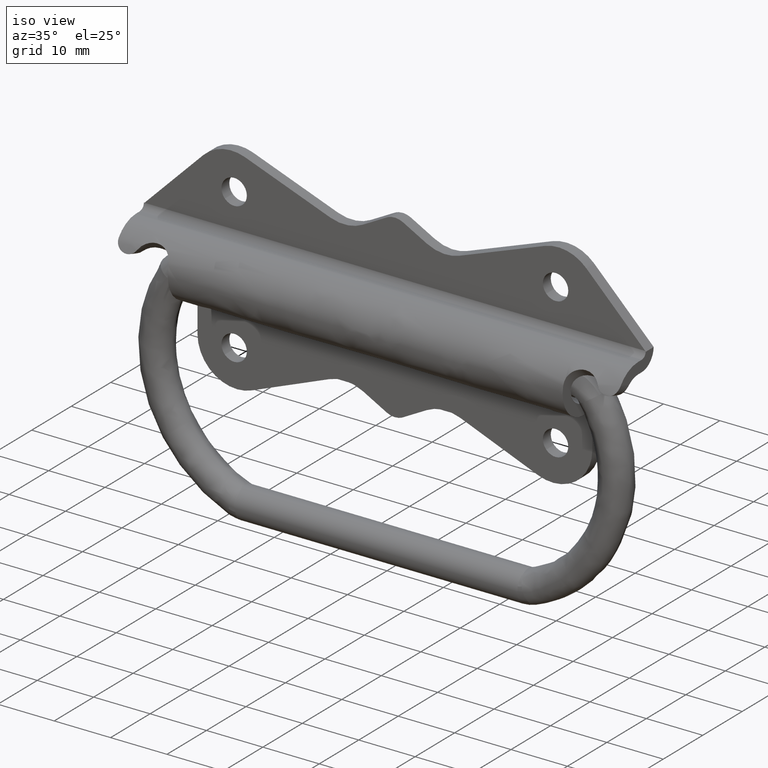
[diagram: clean part render]
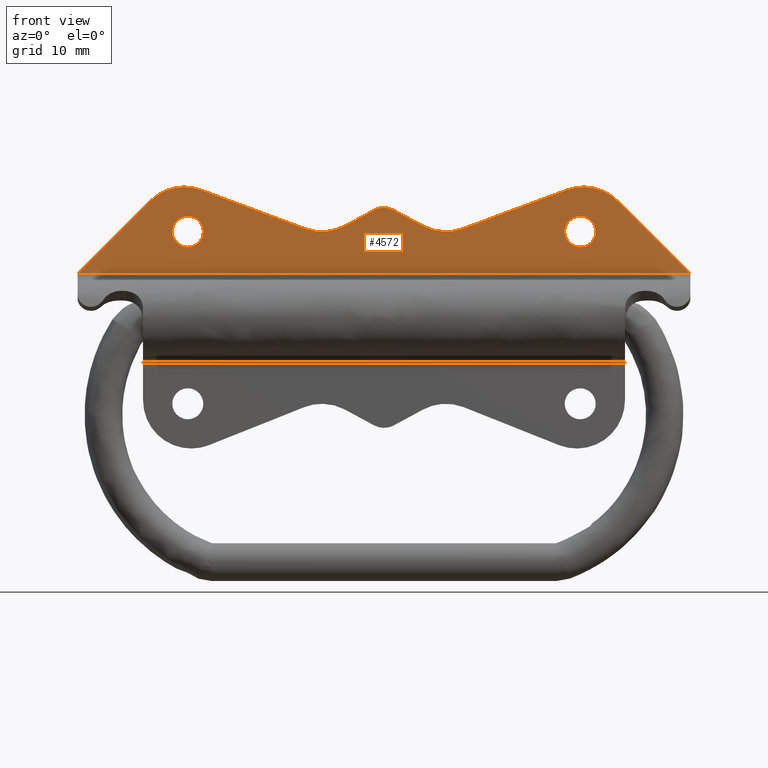
[diagram: tour spotlight — one face highlighted and labeled with its STEP entity id]
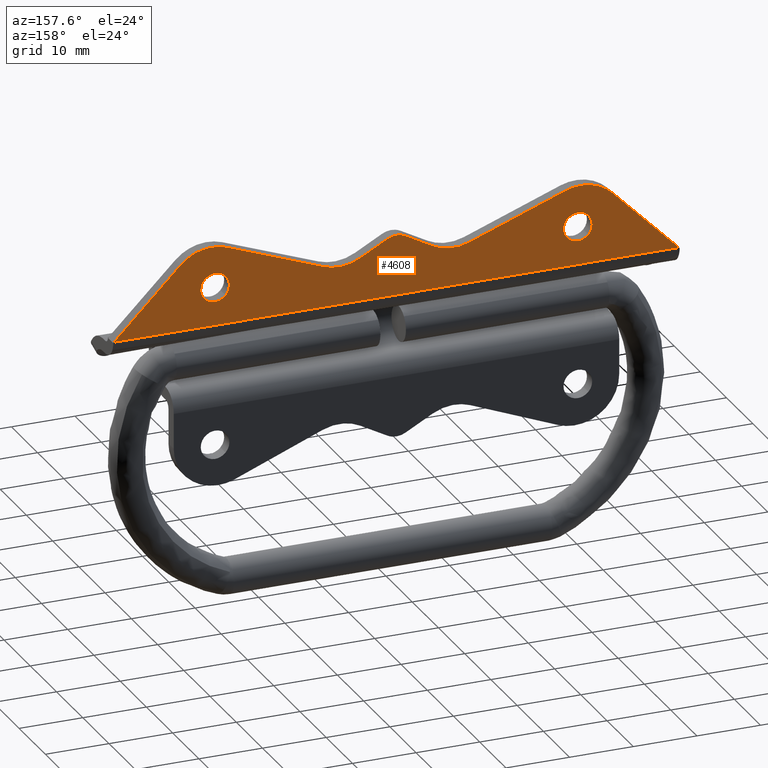
[diagram: tour spotlight — one face highlighted and labeled with its STEP entity id]
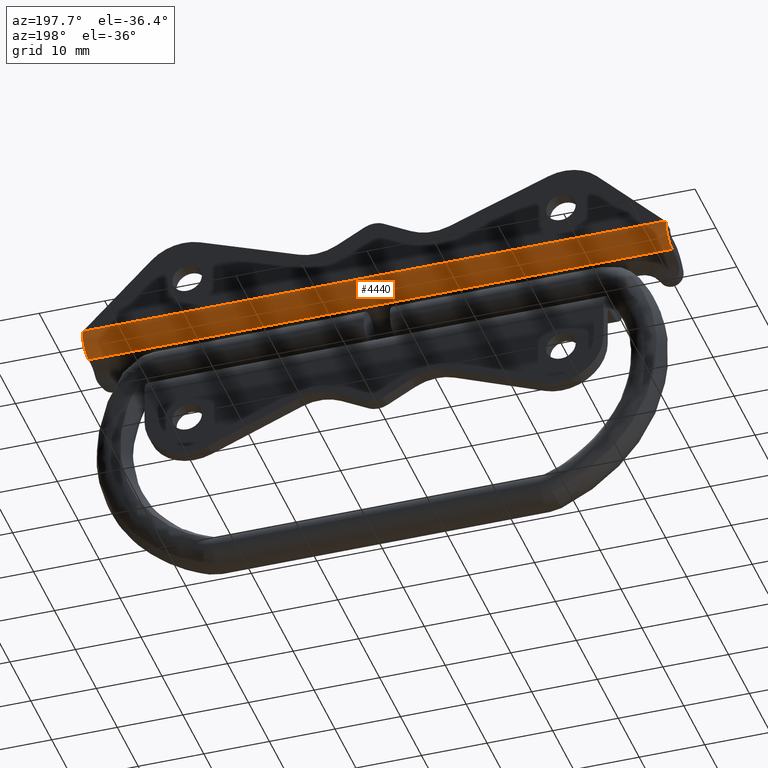
[diagram: tour spotlight — one face highlighted and labeled with its STEP entity id]
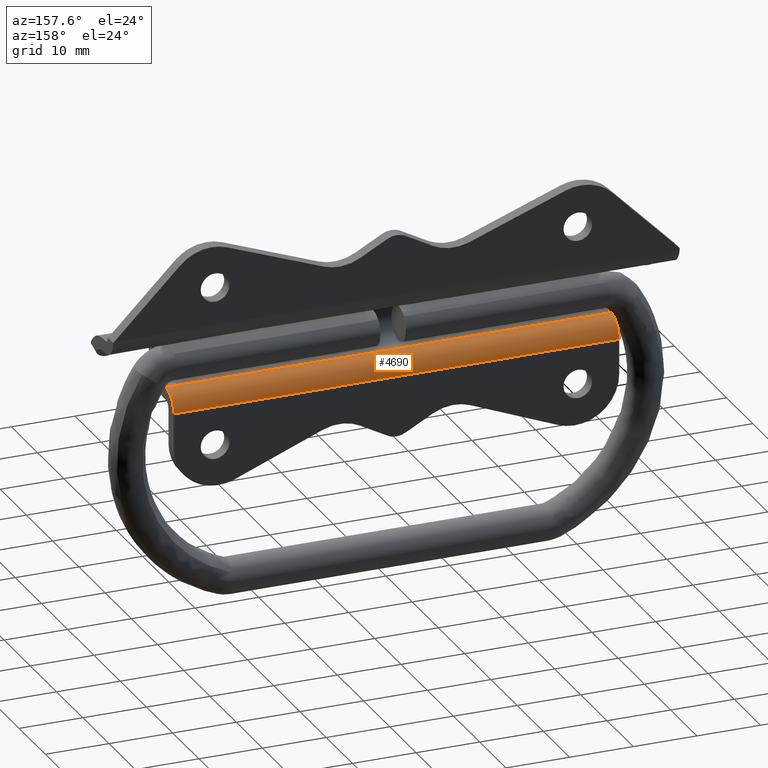
[diagram: tour spotlight — one face highlighted and labeled with its STEP entity id]
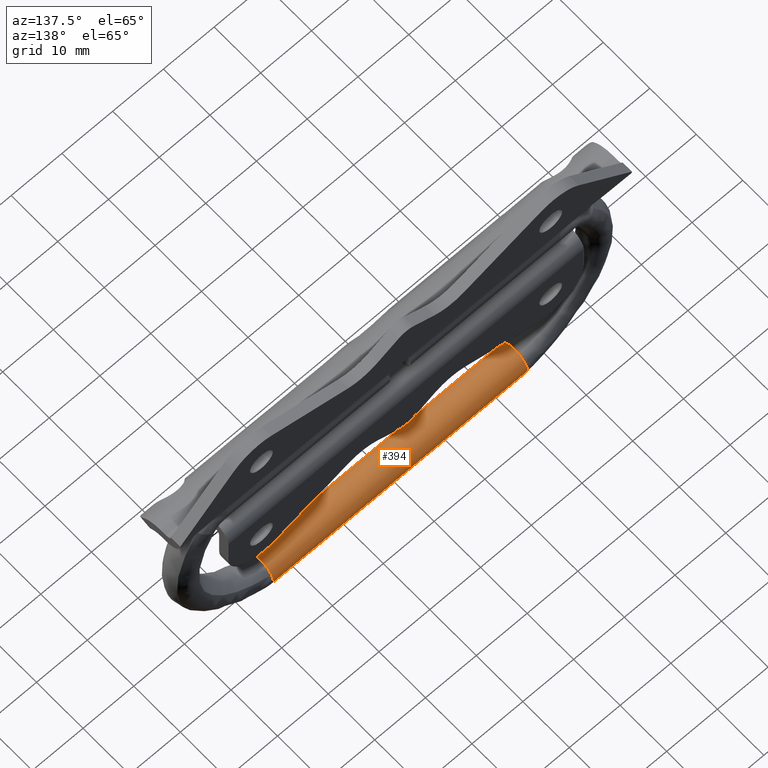
[diagram: tour spotlight — one face highlighted and labeled with its STEP entity id]
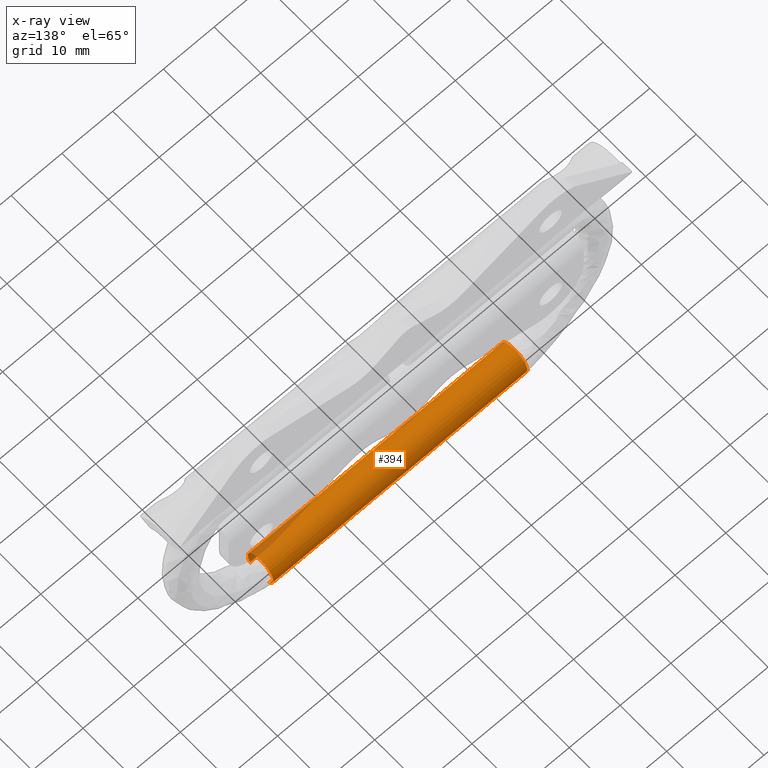
[diagram: x-ray of the same camera — body ghosted, this tour face saturated]
A machine part: a face-by-face anatomy tour. The part has 78 B-rep faces; the first image is the clean iso view, then the 5 largest visible faces are spotlighted one at a time (largest first), each with its STEP entity span.

Face 1 — front view, entity #4572. In plain terms, the highlighted face is a freeform B-spline surface patch.
Definition (entity closure, byte-faithful):
#1646=CARTESIAN_POINT('',(-28.500000000000000,2.0,14.750000000000000));
#1647=VERTEX_POINT('',#1646);
#1648=CARTESIAN_POINT('',(-30.112464303199339,2.0,14.069221608867430));
#1649=VERTEX_POINT('',#1648);
#1650=CARTESIAN_POINT('',(-28.500000000000000,2.0,14.750000000000000));
#1651=CARTESIAN_POINT('',(-28.780936459540200,2.000000000000001,14.750261986376071));
#1652=CARTESIAN_POINT('',(-29.379942735998949,2.000000000000001,14.636219321550950));
#1653=CARTESIAN_POINT('',(-29.890713231224950,1.999999999999998,14.297735731709571));
#1654=CARTESIAN_POINT('',(-30.112464303199339,2.0,14.069221608867430));
#1655=B_SPLINE_CURVE_WITH_KNOTS('',3,(#1650,#1651,#1652,#1653,#1654),.UNSPECIFIED.,.F.,.U.,(4,1,4),(0.000000042792487,0.842713720006371,1.797770490313606),.UNSPECIFIED.);
#1656=EDGE_CURVE('',#1647,#1649,#1655,.T.);
#1714=CARTESIAN_POINT('',(-30.158874300800900,1.999999999987740,10.979921561557321));
#1715=VERTEX_POINT('',#1714);
#1721=CARTESIAN_POINT('',(-28.500000000000000,2.0,10.250000000000000));
#1722=VERTEX_POINT('',#1721);
#1723=CARTESIAN_POINT('',(-30.158874300800900,1.999999999987740,10.979921561557321));
#1724=CARTESIAN_POINT('',(-29.962162818931489,1.999999999989194,10.764796020854270));
#1725=CARTESIAN_POINT('',(-29.451640087844019,1.999999999992967,10.389638264923811));
#1726=CARTESIAN_POINT('',(-28.830415494494609,1.999999999997559,10.249455333816259));
#1727=CARTESIAN_POINT('',(-28.500000000000000,2.0,10.250000000000000));
#1728=B_SPLINE_CURVE_WITH_KNOTS('',3,(#1723,#1724,#1725,#1726,#1727),.UNSPECIFIED.,.F.,.U.,(4,1,4),(0.000000051364732,0.874403335719442,1.865372861857639),.UNSPECIFIED.);
#1729=EDGE_CURVE('',#1715,#1722,#1728,.T.);
#1731=CARTESIAN_POINT('',(-26.250000000001030,2.0,12.500002145833530));
#1732=VERTEX_POINT('',#1731);
#1733=CARTESIAN_POINT('',(-28.500000000000000,2.0,10.250000000000000));
#1734=CARTESIAN_POINT('',(-28.260685985326521,1.999999999999998,10.249872316617211));
#1735=CARTESIAN_POINT('',(-27.855797017828511,2.000000000000004,10.315241041811561));
#1736=CARTESIAN_POINT('',(-27.333832799183540,1.999999999999997,10.554370751765340));
#1737=CARTESIAN_POINT('',(-26.862056656355549,2.000000000000003,10.913121552234211));
#1738=CARTESIAN_POINT('',(-26.472544256283701,1.999999999999999,11.438259299999450));
#1739=CARTESIAN_POINT('',(-26.280066152111100,2.000000000000001,12.021390413593011));
#1740=CARTESIAN_POINT('',(-26.250001080899249,2.0,12.371152328705261));
#1741=CARTESIAN_POINT('',(-26.250000000001030,2.0,12.500002145833530));
#1742=B_SPLINE_CURVE_WITH_KNOTS('',3,(#1733,#1734,#1735,#1736,#1737,#1738,#1739,#1740,#1741),.UNSPECIFIED.,.F.,.U.,(4,1,1,1,1,1,4),(0.000000155767153,0.717913608047622,1.214959039227705,1.711982876236105,2.485112030031873,3.147811830068163,3.534381634218058),.UNSPECIFIED.);
#1743=EDGE_CURVE('',#1722,#1732,#1742,.T.);
#1745=CARTESIAN_POINT('',(-26.250000000001030,2.0,12.500002145833530));
#1746=CARTESIAN_POINT('',(-26.249753758114920,2.0,12.776148038658910));
#1747=CARTESIAN_POINT('',(-26.342683398597149,2.000000000000001,13.273003858985710));
#1748=CARTESIAN_POINT('',(-26.663700237006260,2.000000000000001,13.839651483432529));
#1749=CARTESIAN_POINT('',(-27.020893031221810,1.999999999999997,14.214693929461300));
#1750=CARTESIAN_POINT('',(-27.383813113924180,2.000000000000006,14.470304239101999));
#1751=CARTESIAN_POINT('',(-27.874205535245508,1.999999999999992,14.687735501323001));
#1752=CARTESIAN_POINT('',(-28.260681411242700,2.000000000000001,14.750119632575460));
#1753=CARTESIAN_POINT('',(-28.500000000000000,2.0,14.750000000000000));
#1754=B_SPLINE_CURVE_WITH_KNOTS('',3,(#1745,#1746,#1747,#1748,#1749,#1750,#1751,#1752,#1753),.UNSPECIFIED.,.F.,.U.,(4,1,1,1,1,1,4),(0.000000158707681,0.828370173946963,1.491096059119642,1.932827003585100,2.374648093529795,2.816458655757183,3.534379215303186),.UNSPECIFIED.);
#1755=EDGE_CURVE('',#1732,#1647,#1754,.T.);
#1774=CARTESIAN_POINT('',(-30.749999999998980,2.0,12.499997854166480));
#1775=VERTEX_POINT('',#1774);
#1776=CARTESIAN_POINT('',(-30.112464303199339,2.0,14.069221608867430));
#1777=CARTESIAN_POINT('',(-30.301885406774328,2.000000000000004,13.874897249678909));
#1778=CARTESIAN_POINT('',(-30.629331080357471,1.999999999999996,13.386074960205161));
#1779=CARTESIAN_POINT('',(-30.750357243919360,2.000000000000002,12.807567879027250));
#1780=CARTESIAN_POINT('',(-30.749999999998980,2.0,12.499997854166480));
#1781=B_SPLINE_CURVE_WITH_KNOTS('',3,(#1776,#1777,#1778,#1779,#1780),.UNSPECIFIED.,.F.,.U.,(4,1,4),(0.000000051619185,0.814049717150429,1.736611738029661),.UNSPECIFIED.);
#1782=EDGE_CURVE('',#1649,#1775,#1781,.T.);
#1784=CARTESIAN_POINT('',(-30.749999999998980,2.0,12.499997854166480));
#1785=CARTESIAN_POINT('',(-30.750196169746889,1.999999999997894,12.239190594946161));
#1786=CARTESIAN_POINT('',(-30.652116566863540,1.999999999993425,11.683028737538031));
#1787=CARTESIAN_POINT('',(-30.358826594997769,1.999999999989483,11.197630047076350));
#1788=CARTESIAN_POINT('',(-30.158874300800900,1.999999999987740,10.979921561557321));
#1789=B_SPLINE_CURVE_WITH_KNOTS('',3,(#1784,#1785,#1786,#1787,#1788),.UNSPECIFIED.,.F.,.U.,(4,1,4),(0.000000042381679,0.782358396396658,1.669006656559724),.UNSPECIFIED.);
#1790=EDGE_CURVE('',#1775,#1715,#1789,.T.);
#1842=CARTESIAN_POINT('',(28.499500000000001,2.0,14.750000000000000));
#1843=VERTEX_POINT('',#1842);
#1844=CARTESIAN_POINT('',(26.887035696800659,2.0,14.069221608867430));
#1845=VERTEX_POINT('',#1844);
#1846=CARTESIAN_POINT('',(28.499500000000001,2.0,14.750000000000000));
#1847=CARTESIAN_POINT('',(28.218563634179642,2.000000000000002,14.750262106107860));
#1848=CARTESIAN_POINT('',(27.619557053465272,2.0,14.636218924237280));
#1849=CARTESIAN_POINT('',(27.108786547242278,1.999999999999999,14.297735816048480));
#1850=CARTESIAN_POINT('',(26.887035696800659,2.0,14.069221608867430));
#1851=B_SPLINE_CURVE_WITH_KNOTS('',3,(#1846,#1847,#1848,#1849,#1850),.UNSPECIFIED.,.F.,.U.,(4,1,4),(0.000000042793704,0.842713720006855,1.797770490313599),.UNSPECIFIED.);
#1852=EDGE_CURVE('',#1843,#1845,#1851,.T.);
#1909=CARTESIAN_POINT('',(26.840625699199109,1.999999999987740,10.979921561557321));
#1910=VERTEX_POINT('',#1909);
#1916=CARTESIAN_POINT('',(28.499500000000001,2.0,10.250000000000000));
#1917=VERTEX_POINT('',#1916);
#1918=CARTESIAN_POINT('',(26.840625699199109,1.999999999987740,10.979921561557321));
#1919=CARTESIAN_POINT('',(27.037337163861459,1.999999999989194,10.764775642328820));
#1920=CARTESIAN_POINT('',(27.404280969961640,1.999999999991907,10.495218348600741));
#1921=CARTESIAN_POINT('',(27.994333973120082,1.999999999996261,10.288715397777761));
#1922=CARTESIAN_POINT('',(28.324622496186230,1.999999999998711,10.249962834367571));
#1923=CARTESIAN_POINT('',(28.499500000000001,2.0,10.250000000000000));
#1924=B_SPLINE_CURVE_WITH_KNOTS('',3,(#1918,#1919,#1920,#1921,#1922,#1923),.UNSPECIFIED.,.F.,.U.,(4,1,1,4),(0.000000051365111,0.874403335719575,1.340735715909193,1.865372861857638),.UNSPECIFIED.);
#1925=EDGE_CURVE('',#1910,#1917,#1924,.T.);
#1927=CARTESIAN_POINT('',(30.749499999998971,2.0,12.500002145833530));
#1928=VERTEX_POINT('',#1927);
#1929=CARTESIAN_POINT('',(28.499500000000001,2.0,10.250000000000000));
#1930=CARTESIAN_POINT('',(28.812517220889230,1.999999999999998,10.249575659102270));
#1931=CARTESIAN_POINT('',(29.309151147096319,2.000000000000003,10.355463125445111));
#1932=CARTESIAN_POINT('',(29.929591531373799,1.999999999999996,10.727387331661440));
#1933=CARTESIAN_POINT('',(30.314509164673190,2.000000000000012,11.131654690425441));
#1934=CARTESIAN_POINT('',(30.651860642589408,1.999999999999985,11.727178541332320));
#1935=CARTESIAN_POINT('',(30.749919856530749,1.999999999999999,12.186976699120541));
#1936=CARTESIAN_POINT('',(30.749499999998971,2.0,12.500002145833530));
#1937=B_SPLINE_CURVE_WITH_KNOTS('',3,(#1929,#1930,#1931,#1932,#1933,#1934,#1935,#1936),.UNSPECIFIED.,.F.,.U.,(4,1,1,1,1,4),(0.000000155765443,0.938822008034024,1.491097077846581,2.153760779973535,2.595558531605534,3.534381634218060),.UNSPECIFIED.);
#1938=EDGE_CURVE('',#1917,#1928,#1937,.T.);
#1940=CARTESIAN_POINT('',(30.749499999998971,2.0,12.500002145833530));
#1941=CARTESIAN_POINT('',(30.749532155373711,2.0,12.684075369201770));
#1942=CARTESIAN_POINT('',(30.699576347616290,2.000000000000006,13.089057318124070));
#1943=CARTESIAN_POINT('',(30.478864539766331,1.999999999999996,13.621998745908421));
#1944=CARTESIAN_POINT('',(30.153544390042409,2.000000000000001,14.049369447686161));
#1945=CARTESIAN_POINT('',(29.719458012920128,2.000000000000003,14.424089427867070));
#1946=CARTESIAN_POINT('',(29.162195512412211,1.999999999999991,14.687545158747939));
#1947=CARTESIAN_POINT('',(28.701978463231629,2.000000000000007,14.750050716259830));
#1948=CARTESIAN_POINT('',(28.499500000000001,2.0,14.750000000000000));
#1949=B_SPLINE_CURVE_WITH_KNOTS('',3,(#1940,#1941,#1942,#1943,#1944,#1945,#1946,#1947,#1948),.UNSPECIFIED.,.F.,.U.,(4,1,1,1,1,1,4),(0.000000158706988,0.552237305301579,1.214958210623204,1.711981710236493,2.153759310826881,2.926920889924953,3.534379215303185),.UNSPECIFIED.);
#1950=EDGE_CURVE('',#1928,#1843,#1949,.T.);
#1969=CARTESIAN_POINT('',(26.249500000001021,2.0,12.499997854166480));
#1970=VERTEX_POINT('',#1969);
#1971=CARTESIAN_POINT('',(26.887035696800659,2.0,14.069221608867430));
#1972=CARTESIAN_POINT('',(26.773473536659761,2.0,13.952563590055281));
#1973=CARTESIAN_POINT('',(26.560628451526060,2.000000000000001,13.680126641537271));
#1974=CARTESIAN_POINT('',(26.315332295183381,1.999999999999999,13.151158856809230));
#1975=CARTESIAN_POINT('',(26.249380536677080,2.0,12.735175303383530));
#1976=CARTESIAN_POINT('',(26.249500000001021,2.0,12.499997854166480));
#1977=B_SPLINE_CURVE_WITH_KNOTS('',3,(#1971,#1972,#1973,#1974,#1975,#1976),.UNSPECIFIED.,.F.,.U.,(4,1,1,4),(0.000000051619686,0.488425074960503,1.031098570551054,1.736611738029661),.UNSPECIFIED.);
#1978=EDGE_CURVE('',#1845,#1970,#1977,.T.);
#1980=CARTESIAN_POINT('',(26.249500000001021,2.0,12.499997854166480));
#1981=CARTESIAN_POINT('',(26.249197254525331,1.999999999997612,12.204409185805840));
#1982=CARTESIAN_POINT('',(26.360814171877639,1.999999999993139,11.648371273676970));
#1983=CARTESIAN_POINT('',(26.664293575103791,1.999999999989284,11.172078723060849));
#1984=CARTESIAN_POINT('',(26.840625699199109,1.999999999987740,10.979921561557321));
#1985=B_SPLINE_CURVE_WITH_KNOTS('',3,(#1980,#1981,#1982,#1983,#1984),.UNSPECIFIED.,.F.,.U.,(4,1,4),(0.000000042381898,0.886648302536310,1.669006656559725),.UNSPECIFIED.);
#1986=EDGE_CURVE('',#1970,#1910,#1985,.T.);
#3739=CARTESIAN_POINT('',(44.399498104265348,2.0,6.500000000000000));
#3740=VERTEX_POINT('',#3739);
#3789=CARTESIAN_POINT('',(-11.440199442288840,2.0,12.939074152804020));
#3790=VERTEX_POINT('',#3789);
#3796=CARTESIAN_POINT('',(-5.669244379550140,2.0,13.343867754994800));
#3797=VERTEX_POINT('',#3796);
#3798=CARTESIAN_POINT('',(-11.440199442288840,2.0,12.939074152804020));
#3799=CARTESIAN_POINT('',(-10.770638793918330,2.000000000000002,12.689767171407400));
#3800=CARTESIAN_POINT('',(-9.631624005275320,2.000000000000002,12.456038693896630));
#3801=CARTESIAN_POINT('',(-8.197897223642855,1.999999999999999,12.518450403143010));
#3802=CARTESIAN_POINT('',(-6.946618675829916,2.000000000000004,12.767534912839389));
#3803=CARTESIAN_POINT('',(-6.160921547586766,1.999999999999997,13.077629219211980));
#3804=CARTESIAN_POINT('',(-5.669244379550140,2.0,13.343867754994800));
#3805=B_SPLINE_CURVE_WITH_KNOTS('',3,(#3798,#3799,#3800,#3801,#3802,#3803,#3804),.UNSPECIFIED.,.F.,.U.,(4,1,1,1,4),(0.000000036216810,2.143287754265289,3.447888815916641,4.286570387829157,5.963925233156983),.UNSPECIFIED.);
#3806=EDGE_CURVE('',#3790,#3797,#3805,.T.);
#3829=CARTESIAN_POINT('',(-1.428287116790310,2.0,15.638844627910000));
#3830=VERTEX_POINT('',#3829);
#3831=CARTESIAN_POINT('',(-1.428287116790310,2.0,15.638844627910000));
#3832=CARTESIAN_POINT('',(-5.669244379550140,2.0,13.343867754994800));
#3833=QUASI_UNIFORM_CURVE('',1,(#3831,#3832),.UNSPECIFIED.,.F.,.U.);
#3834=EDGE_CURVE('',#3830,#3797,#3833,.T.);
#3871=CARTESIAN_POINT('',(1.427287116790304,2.0,15.638844627910000));
#3872=VERTEX_POINT('',#3871);
#3873=CARTESIAN_POINT('',(1.427287116790304,2.0,15.638844627910000));
#3874=CARTESIAN_POINT('',(1.154696834655927,2.000000000000002,15.786553995604720));
#3875=CARTESIAN_POINT('',(0.666753511131154,1.999999999999999,15.959393948726079));
#3876=CARTESIAN_POINT('',(-0.047306452414990,2.000000000000001,16.020404985594801));
#3877=CARTESIAN_POINT('',(-0.728181670149738,1.999999999999994,15.940905691611800));
#3878=CARTESIAN_POINT('',(-1.182939748335871,2.000000000000011,15.771732039058470));
#3879=CARTESIAN_POINT('',(-1.428287116790310,2.0,15.638844627910000));
#3880=B_SPLINE_CURVE_WITH_KNOTS('',3,(#3873,#3874,#3875,#3876,#3877,#3878,#3879),.UNSPECIFIED.,.F.,.U.,(4,1,1,1,4),(0.000000076282284,0.930050436038220,1.534549088440223,2.139104867650195,2.976150247926148),.UNSPECIFIED.);
#3881=EDGE_CURVE('',#3872,#3830,#3880,.T.);
#3904=CARTESIAN_POINT('',(5.668244379550170,2.0,13.343867754994781));
#3905=VERTEX_POINT('',#3904);
#3906=CARTESIAN_POINT('',(5.668244379550170,2.0,13.343867754994781));
#3907=CARTESIAN_POINT('',(1.427287116790304,2.0,15.638844627910000));
#3908=QUASI_UNIFORM_CURVE('',1,(#3906,#3907),.UNSPECIFIED.,.F.,.U.);
#3909=EDGE_CURVE('',#3905,#3872,#3908,.T.);
#3946=CARTESIAN_POINT('',(11.439199442288860,2.0,12.939074152804020));
#3947=VERTEX_POINT('',#3946);
#3948=CARTESIAN_POINT('',(5.668244379550170,2.0,13.343867754994781));
#3949=CARTESIAN_POINT('',(6.214530247466731,1.999999999999994,13.047984986832530));
#3950=CARTESIAN_POINT('',(7.122845025992683,2.000000000000010,12.703514390248690));
#3951=CARTESIAN_POINT('',(8.538015313500818,1.999999999999996,12.480102778218940));
#3952=CARTESIAN_POINT('',(9.911372293599264,2.000000000000007,12.502776703257229));
#3953=CARTESIAN_POINT('',(10.915170906731509,1.999999999999999,12.744094632736701));
#3954=CARTESIAN_POINT('',(11.439199442288860,2.0,12.939074152804020));
#3955=B_SPLINE_CURVE_WITH_KNOTS('',3,(#3948,#3949,#3950,#3951,#3952,#3953,#3954),.UNSPECIFIED.,.F.,.U.,(4,1,1,1,4),(0.000000036216330,1.863732988903369,2.888793466188754,4.286570387829078,5.963925233156973),.UNSPECIFIED.);
#3956=EDGE_CURVE('',#3905,#3947,#3955,.T.);
#3979=CARTESIAN_POINT('',(26.560388297111949,2.0,18.561144369179601));
#3980=VERTEX_POINT('',#3979);
#3981=CARTESIAN_POINT('',(26.560388297111949,2.0,18.561144369179601));
#3982=CARTESIAN_POINT('',(11.439199442288860,2.0,12.939074152804020));
#3983=QUASI_UNIFORM_CURVE('',1,(#3981,#3982),.UNSPECIFIED.,.F.,.U.);
#3984=EDGE_CURVE('',#3980,#3947,#3983,.T.);
#4023=CARTESIAN_POINT('',(33.949540638830463,2.0,16.949759365731250));
#4024=VERTEX_POINT('',#4023);
#4025=CARTESIAN_POINT('',(33.949540638830463,2.0,16.949759365731250));
#4026=CARTESIAN_POINT('',(33.552400440382598,2.000000000000005,17.347085469706379));
#4027=CARTESIAN_POINT('',(32.810158341117642,1.999999999999994,17.928820650936029));
#4028=CARTESIAN_POINT('',(31.597099727742041,2.000000000000005,18.536467317325631));
#4029=CARTESIAN_POINT('',(30.517822318190401,1.999999999999994,18.864378973768300));
#4030=CARTESIAN_POINT('',(29.504964621633100,2.000000000000007,19.001346964054321));
#4031=CARTESIAN_POINT('',(28.191972248147231,1.999999999999981,19.008256389404970));
#4032=CARTESIAN_POINT('',(27.223368452340829,2.000000000000011,18.808023260805200));
#4033=CARTESIAN_POINT('',(26.560388297111949,2.0,18.561144369179601));
#4034=B_SPLINE_CURVE_WITH_KNOTS('',3,(#4025,#4026,#4027,#4028,#4029,#4030,#4031,#4032,#4033),.UNSPECIFIED.,.F.,.U.,(4,1,1,1,1,1,4),(0.000000057551412,1.685280211680443,2.808814471052346,4.057128554269973,5.055843382958785,5.867279602957026,7.989487928072841),.UNSPECIFIED.);
#4035=EDGE_CURVE('',#4024,#3980,#4034,.T.);
#4075=CARTESIAN_POINT('',(-33.950368861353503,2.0,16.949631138646399));
#4076=VERTEX_POINT('',#4075);
#4082=CARTESIAN_POINT('',(-26.561169602819749,2.0,18.561063058465301));
#4083=VERTEX_POINT('',#4082);
#4084=CARTESIAN_POINT('',(-26.561169602819749,2.0,18.561063058465301));
#4085=CARTESIAN_POINT('',(-27.087682039261360,2.000000000000001,18.756959199408580));
#4086=CARTESIAN_POINT('',(-28.004742068637530,1.999999999999997,18.976854399034590));
#4087=CARTESIAN_POINT('',(-29.506715509127439,2.000000000000011,19.029456463765872));
#4088=CARTESIAN_POINT('',(-30.788231701109360,1.999999999999972,18.815169738922670));
#4089=CARTESIAN_POINT('',(-32.037173813044902,2.000000000000070,18.342347439971281));
#4090=CARTESIAN_POINT('',(-33.048346527362632,1.999999999999805,17.754205773790169));
#4091=CARTESIAN_POINT('',(-33.670858371242183,2.000000000000225,17.229179373041891));
#4092=CARTESIAN_POINT('',(-33.950368861353503,2.0,16.949631138646399));
#4093=B_SPLINE_CURVE_WITH_KNOTS('',3,(#4084,#4085,#4086,#4087,#4088,#4089,#4090,#4091,#4092),.UNSPECIFIED.,.F.,.U.,(4,1,1,1,1,1,4),(0.000000057534856,1.685294207461775,2.808837797750217,4.494102931064628,5.555230544537748,6.803611342252855,7.989554278814324),.UNSPECIFIED.);
#4094=EDGE_CURVE('',#4083,#4076,#4093,.T.);
#4115=CARTESIAN_POINT('',(-11.440199442288840,2.0,12.939074152804020));
#4116=CARTESIAN_POINT('',(-26.561169602819749,2.0,18.561063058465301));
#4117=QUASI_UNIFORM_CURVE('',1,(#4115,#4116),.UNSPECIFIED.,.F.,.U.);
#4118=EDGE_CURVE('',#3790,#4083,#4117,.T.);
#4131=CARTESIAN_POINT('',(-44.399999999999999,2.0,6.500000000000000));
#4132=VERTEX_POINT('',#4131);
#4166=CARTESIAN_POINT('',(-33.950368861353503,2.0,16.949631138646399));
#4167=CARTESIAN_POINT('',(-44.399999999999999,2.0,6.500000000000000));
#4168=QUASI_UNIFORM_CURVE('',1,(#4166,#4167),.UNSPECIFIED.,.F.,.U.);
#4169=EDGE_CURVE('',#4076,#4132,#4168,.T.);
#4200=CARTESIAN_POINT('',(44.399498104265348,2.0,6.500000000000000));
#4201=CARTESIAN_POINT('',(33.949540638830463,2.0,16.949759365731250));
#4202=QUASI_UNIFORM_CURVE('',1,(#4200,#4201),.UNSPECIFIED.,.F.,.U.);
#4203=EDGE_CURVE('',#3740,#4024,#4202,.T.);
#4401=CARTESIAN_POINT('',(44.399498104265348,2.0,6.500000000000000));
#4402=CARTESIAN_POINT('',(-44.399999999999999,2.0,6.500000000000000));
#4403=QUASI_UNIFORM_CURVE('',1,(#4401,#4402),.UNSPECIFIED.,.F.,.U.);
#4404=EDGE_CURVE('',#3740,#4132,#4403,.T.);
#4537=CARTESIAN_POINT('',(-48.835536425369703,2.0,5.875657522249542));
#4538=CARTESIAN_POINT('',(-48.835536425369703,2.0,19.623692201928669));
#4539=CARTESIAN_POINT('',(48.835035323564433,2.0,5.875657522249542));
#4540=CARTESIAN_POINT('',(48.835035323564433,2.0,19.623692201928669));
#4541=B_SPLINE_SURFACE_WITH_KNOTS('',1,1,((#4537,#4539),(#4538,#4540)),.UNSPECIFIED.,.F.,.F.,.U.,(2,2),(2,2),(0.0,13.748034679679121),(0.0,97.670571748934123),.UNSPECIFIED.);
#4542=ORIENTED_EDGE('',*,*,#4094,.T.);
#4543=ORIENTED_EDGE('',*,*,#4169,.T.);
#4544=ORIENTED_EDGE('',*,*,#4404,.F.);
#4545=ORIENTED_EDGE('',*,*,#4203,.T.);
#4546=ORIENTED_EDGE('',*,*,#4035,.T.);
#4547=ORIENTED_EDGE('',*,*,#3984,.T.);
#4548=ORIENTED_EDGE('',*,*,#3956,.F.);
#4549=ORIENTED_EDGE('',*,*,#3909,.T.);
#4550=ORIENTED_EDGE('',*,*,#3881,.T.);
#4551=ORIENTED_EDGE('',*,*,#3834,.T.);
#4552=ORIENTED_EDGE('',*,*,#3806,.F.);
#4553=ORIENTED_EDGE('',*,*,#4118,.T.);
#4554=EDGE_LOOP('',(#4542,#4543,#4544,#4545,#4546,#4547,#4548,#4549,#4550,#4551,#4552,#4553));
#4555=FACE_OUTER_BOUND('',#4554,.T.);
#4556=ORIENTED_EDGE('',*,*,#1938,.F.);
#4557=ORIENTED_EDGE('',*,*,#1925,.F.);
#4558=ORIENTED_EDGE('',*,*,#1986,.F.);
#4559=ORIENTED_EDGE('',*,*,#1978,.F.);
#4560=ORIENTED_EDGE('',*,*,#1852,.F.);
#4561=ORIENTED_EDGE('',*,*,#1950,.F.);
#4562=EDGE_LOOP('',(#4556,#4557,#4558,#4559,#4560,#4561));
#4563=FACE_BOUND('',#4562,.T.);
#4564=ORIENTED_EDGE('',*,*,#1743,.F.);
#4565=ORIENTED_EDGE('',*,*,#1729,.F.);
#4566=ORIENTED_EDGE('',*,*,#1790,.F.);
#4567=ORIENTED_EDGE('',*,*,#1782,.F.);
#4568=ORIENTED_EDGE('',*,*,#1656,.F.);
#4569=ORIENTED_EDGE('',*,*,#1755,.F.);
#4570=EDGE_LOOP('',(#4564,#4565,#4566,#4567,#4568,#4569));
#4571=FACE_BOUND('',#4570,.T.);
#4572=ADVANCED_FACE('',(#4555,#4563,#4571),#4541,.F.);

Face 2 — auxiliary view, entity #4608. In plain terms, the highlighted face is a freeform B-spline surface patch.
Definition (entity closure, byte-faithful):
#1658=CARTESIAN_POINT('',(-30.112464303199339,4.0,14.069221608867430));
#1659=VERTEX_POINT('',#1658);
#1665=CARTESIAN_POINT('',(-28.500000000000000,4.0,14.750000000000000));
#1666=VERTEX_POINT('',#1665);
#1667=CARTESIAN_POINT('',(-28.500000000000000,4.0,14.750000000000000));
#1668=CARTESIAN_POINT('',(-28.780936459540200,4.000000000000002,14.750261986376071));
#1669=CARTESIAN_POINT('',(-29.379942735998949,4.000000000000002,14.636219321550950));
#1670=CARTESIAN_POINT('',(-29.890713231224950,3.999999999999995,14.297735731709571));
#1671=CARTESIAN_POINT('',(-30.112464303199339,4.0,14.069221608867430));
#1672=B_SPLINE_CURVE_WITH_KNOTS('',3,(#1667,#1668,#1669,#1670,#1671),.UNSPECIFIED.,.F.,.U.,(4,1,4),(0.000000042792487,0.842713720006371,1.797770490313606),.UNSPECIFIED.);
#1673=EDGE_CURVE('',#1666,#1659,#1672,.T.);
#1675=CARTESIAN_POINT('',(-26.250000000001030,4.0,12.500002145833530));
#1676=VERTEX_POINT('',#1675);
#1677=CARTESIAN_POINT('',(-26.250000000001030,4.0,12.500002145833530));
#1678=CARTESIAN_POINT('',(-26.249753758114920,4.0,12.776148038658910));
#1679=CARTESIAN_POINT('',(-26.342683398597149,4.000000000000003,13.273003858985710));
#1680=CARTESIAN_POINT('',(-26.663700237006260,4.000000000000002,13.839651483432529));
#1681=CARTESIAN_POINT('',(-27.020893031221810,3.999999999999994,14.214693929461300));
#1682=CARTESIAN_POINT('',(-27.383813113924180,4.000000000000012,14.470304239101999));
#1683=CARTESIAN_POINT('',(-27.874205535245508,3.999999999999983,14.687735501323001));
#1684=CARTESIAN_POINT('',(-28.260681411242700,4.000000000000003,14.750119632575460));
#1685=CARTESIAN_POINT('',(-28.500000000000000,4.0,14.750000000000000));
#1686=B_SPLINE_CURVE_WITH_KNOTS('',3,(#1677,#1678,#1679,#1680,#1681,#1682,#1683,#1684,#1685),.UNSPECIFIED.,.F.,.U.,(4,1,1,1,1,1,4),(0.000000158707681,0.828370173946963,1.491096059119642,1.932827003585100,2.374648093529795,2.816458655757183,3.534379215303186),.UNSPECIFIED.);
#1687=EDGE_CURVE('',#1676,#1666,#1686,.T.);
#1689=CARTESIAN_POINT('',(-28.500000000000000,4.0,10.250000000000000));
#1690=VERTEX_POINT('',#1689);
#1691=CARTESIAN_POINT('',(-28.500000000000000,4.0,10.250000000000000));
#1692=CARTESIAN_POINT('',(-28.260685985326521,3.999999999999997,10.249872316617211));
#1693=CARTESIAN_POINT('',(-27.855797017828511,4.000000000000009,10.315241041811561));
#1694=CARTESIAN_POINT('',(-27.333832799183540,3.999999999999994,10.554370751765340));
#1695=CARTESIAN_POINT('',(-26.862056656355549,4.000000000000005,10.913121552234211));
#1696=CARTESIAN_POINT('',(-26.472544256283701,3.999999999999998,11.438259299999450));
#1697=CARTESIAN_POINT('',(-26.280066152111100,4.000000000000002,12.021390413593011));
#1698=CARTESIAN_POINT('',(-26.250001080899249,4.0,12.371152328705261));
#1699=CARTESIAN_POINT('',(-26.250000000001030,4.0,12.500002145833530));
#1700=B_SPLINE_CURVE_WITH_KNOTS('',3,(#1691,#1692,#1693,#1694,#1695,#1696,#1697,#1698,#1699),.UNSPECIFIED.,.F.,.U.,(4,1,1,1,1,1,4),(0.000000155767153,0.717913608047622,1.214959039227705,1.711982876236105,2.485112030031873,3.147811830068163,3.534381634218058),.UNSPECIFIED.);
#1701=EDGE_CURVE('',#1690,#1676,#1700,.T.);
#1703=CARTESIAN_POINT('',(-30.158874302059989,4.0,10.979921562931381));
#1704=VERTEX_POINT('',#1703);
#1705=CARTESIAN_POINT('',(-30.158874302059989,4.0,10.979921562931381));
#1706=CARTESIAN_POINT('',(-29.962162661403049,3.999999999999996,10.764767675533090));
#1707=CARTESIAN_POINT('',(-29.627130407507341,4.000000000000010,10.518680810091960));
#1708=CARTESIAN_POINT('',(-29.044001021964029,3.999999999999989,10.297445794786510));
#1709=CARTESIAN_POINT('',(-28.713748775427401,4.000000000000009,10.249918387327959));
#1710=CARTESIAN_POINT('',(-28.500000000000000,4.0,10.250000000000000));
#1711=B_SPLINE_CURVE_WITH_KNOTS('',3,(#1705,#1706,#1707,#1708,#1709,#1710),.UNSPECIFIED.,.F.,.U.,(4,1,1,4),(0.000000051363991,0.874403336592838,1.224142092172157,1.865372863721496),.UNSPECIFIED.);
#1712=EDGE_CURVE('',#1704,#1690,#1711,.T.);
#1793=CARTESIAN_POINT('',(-30.749999999998980,4.0,12.499997854166480));
#1794=VERTEX_POINT('',#1793);
#1795=CARTESIAN_POINT('',(-30.749999999998980,4.0,12.499997854166480));
#1796=CARTESIAN_POINT('',(-30.750113363927369,3.999999999999999,12.273972213445310));
#1797=CARTESIAN_POINT('',(-30.694498264126970,4.000000000000007,11.908958134121869));
#1798=CARTESIAN_POINT('',(-30.479964768650660,3.999999999999992,11.393062179039561));
#1799=CARTESIAN_POINT('',(-30.288117261014929,4.000000000000012,11.120880885043841));
#1800=CARTESIAN_POINT('',(-30.158874302059989,4.0,10.979921562931381));
#1801=B_SPLINE_CURVE_WITH_KNOTS('',3,(#1795,#1796,#1797,#1798,#1799,#1800),.UNSPECIFIED.,.F.,.U.,(4,1,1,4),(0.000000042382278,0.678046993769698,1.095283807439051,1.669006654695901),.UNSPECIFIED.);
#1802=EDGE_CURVE('',#1794,#1704,#1801,.T.);
#1804=CARTESIAN_POINT('',(-30.112464303199339,4.0,14.069221608867430));
#1805=CARTESIAN_POINT('',(-30.301885406774328,4.000000000000009,13.874897249678909));
#1806=CARTESIAN_POINT('',(-30.629331080357471,3.999999999999992,13.386074960205161));
#1807=CARTESIAN_POINT('',(-30.750357243919360,4.000000000000004,12.807567879027250));
#1808=CARTESIAN_POINT('',(-30.749999999998980,4.0,12.499997854166480));
#1809=B_SPLINE_CURVE_WITH_KNOTS('',3,(#1804,#1805,#1806,#1807,#1808),.UNSPECIFIED.,.F.,.U.,(4,1,4),(0.000000051619185,0.814049717150429,1.736611738029661),.UNSPECIFIED.);
#1810=EDGE_CURVE('',#1659,#1794,#1809,.T.);
#1854=CARTESIAN_POINT('',(26.887035696800659,4.0,14.069221608867430));
#1855=VERTEX_POINT('',#1854);
#1861=CARTESIAN_POINT('',(28.499500000000001,4.0,14.750000000000000));
#1862=VERTEX_POINT('',#1861);
#1863=CARTESIAN_POINT('',(28.499500000000001,4.0,14.750000000000000));
#1864=CARTESIAN_POINT('',(28.218563634179642,4.000000000000004,14.750262106107860));
#1865=CARTESIAN_POINT('',(27.619557053465272,3.999999999999999,14.636218924237280));
#1866=CARTESIAN_POINT('',(27.108786547242278,3.999999999999998,14.297735816048480));
#1867=CARTESIAN_POINT('',(26.887035696800659,4.0,14.069221608867430));
#1868=B_SPLINE_CURVE_WITH_KNOTS('',3,(#1863,#1864,#1865,#1866,#1867),.UNSPECIFIED.,.F.,.U.,(4,1,4),(0.000000042793704,0.842713720006855,1.797770490313599),.UNSPECIFIED.);
#1869=EDGE_CURVE('',#1862,#1855,#1868,.T.);
#1871=CARTESIAN_POINT('',(30.749499999998971,4.0,12.500002145833530));
#1872=VERTEX_POINT('',#1871);
#1873=CARTESIAN_POINT('',(30.749499999998971,4.0,12.500002145833530));
#1874=CARTESIAN_POINT('',(30.749532155373711,4.0,12.684075369201770));
#1875=CARTESIAN_POINT('',(30.699576347616290,4.000000000000012,13.089057318124070));
#1876=CARTESIAN_POINT('',(30.478864539766331,3.999999999999991,13.621998745908421));
#1877=CARTESIAN_POINT('',(30.153544390042409,4.000000000000003,14.049369447686161));
#1878=CARTESIAN_POINT('',(29.719458012920128,4.000000000000005,14.424089427867070));
#1879=CARTESIAN_POINT('',(29.162195512412211,3.999999999999981,14.687545158747939));
#1880=CARTESIAN_POINT('',(28.701978463231629,4.000000000000013,14.750050716259830));
#1881=CARTESIAN_POINT('',(28.499500000000001,4.0,14.750000000000000));
#1882=B_SPLINE_CURVE_WITH_KNOTS('',3,(#1873,#1874,#1875,#1876,#1877,#1878,#1879,#1880,#1881),.UNSPECIFIED.,.F.,.U.,(4,1,1,1,1,1,4),(0.000000158706988,0.552237305301579,1.214958210623204,1.711981710236493,2.153759310826881,2.926920889924953,3.534379215303185),.UNSPECIFIED.);
#1883=EDGE_CURVE('',#1872,#1862,#1882,.T.);
#1885=CARTESIAN_POINT('',(28.499500000000001,4.0,10.250000000000000));
#1886=VERTEX_POINT('',#1885);
#1887=CARTESIAN_POINT('',(28.499500000000001,4.0,10.250000000000000));
#1888=CARTESIAN_POINT('',(28.812517220889230,3.999999999999996,10.249575659102270));
#1889=CARTESIAN_POINT('',(29.309151147096319,4.000000000000005,10.355463125445111));
#1890=CARTESIAN_POINT('',(29.929591531373799,3.999999999999993,10.727387331661440));
#1891=CARTESIAN_POINT('',(30.314509164673190,4.000000000000025,11.131654690425441));
#1892=CARTESIAN_POINT('',(30.651860642589408,3.999999999999970,11.727178541332320));
#1893=CARTESIAN_POINT('',(30.749919856530749,3.999999999999998,12.186976699120541));
#1894=CARTESIAN_POINT('',(30.749499999998971,4.0,12.500002145833530));
#1895=B_SPLINE_CURVE_WITH_KNOTS('',3,(#1887,#1888,#1889,#1890,#1891,#1892,#1893,#1894),.UNSPECIFIED.,.F.,.U.,(4,1,1,1,1,4),(0.000000155765443,0.938822008034024,1.491097077846581,2.153760779973535,2.595558531605534,3.534381634218060),.UNSPECIFIED.);
#1896=EDGE_CURVE('',#1886,#1872,#1895,.T.);
#1898=CARTESIAN_POINT('',(26.840625697940009,4.0,10.979921562931381));
#1899=VERTEX_POINT('',#1898);
#1900=CARTESIAN_POINT('',(26.840625697940009,4.0,10.979921562931381));
#1901=CARTESIAN_POINT('',(27.037336537907059,3.999999999999999,10.764774151423390));
#1902=CARTESIAN_POINT('',(27.404280767480870,4.000000000000010,10.495219313470420));
#1903=CARTESIAN_POINT('',(27.994334850088212,3.999999999999984,10.288714972685661));
#1904=CARTESIAN_POINT('',(28.324620826945772,4.000000000000011,10.249962966593040));
#1905=CARTESIAN_POINT('',(28.499500000000001,4.0,10.250000000000000));
#1906=B_SPLINE_CURVE_WITH_KNOTS('',3,(#1900,#1901,#1902,#1903,#1904,#1905),.UNSPECIFIED.,.F.,.U.,(4,1,1,4),(0.000000051364832,0.874403336593273,1.340735717248797,1.865372863721487),.UNSPECIFIED.);
#1907=EDGE_CURVE('',#1899,#1886,#1906,.T.);
#1989=CARTESIAN_POINT('',(26.249500000001021,4.0,12.499997854166480));
#1990=VERTEX_POINT('',#1989);
#1991=CARTESIAN_POINT('',(26.249500000001021,4.0,12.499997854166480));
#1992=CARTESIAN_POINT('',(26.249161774073329,3.999999999999999,12.204401742799000));
#1993=CARTESIAN_POINT('',(26.360855622980420,4.000000000000001,11.648381145971330));
#1994=CARTESIAN_POINT('',(26.664282854406309,3.999999999999996,11.172077700203220));
#1995=CARTESIAN_POINT('',(26.840625697940009,4.0,10.979921562931381));
#1996=B_SPLINE_CURVE_WITH_KNOTS('',3,(#1991,#1992,#1993,#1994,#1995),.UNSPECIFIED.,.F.,.U.,(4,1,4),(0.000000042381928,0.886648301546231,1.669006654695905),.UNSPECIFIED.);
#1997=EDGE_CURVE('',#1990,#1899,#1996,.T.);
#1999=CARTESIAN_POINT('',(26.887035696800659,4.0,14.069221608867430));
#2000=CARTESIAN_POINT('',(26.773473536659761,4.0,13.952563590055281));
#2001=CARTESIAN_POINT('',(26.560628451526060,4.000000000000003,13.680126641537271));
#2002=CARTESIAN_POINT('',(26.315332295183381,3.999999999999998,13.151158856809230));
#2003=CARTESIAN_POINT('',(26.249380536677080,3.999999999999999,12.735175303383530));
#2004=CARTESIAN_POINT('',(26.249500000001021,4.0,12.499997854166480));
#2005=B_SPLINE_CURVE_WITH_KNOTS('',3,(#1999,#2000,#2001,#2002,#2003,#2004),.UNSPECIFIED.,.F.,.U.,(4,1,1,4),(0.000000051619686,0.488425074960503,1.031098570551054,1.736611738029661),.UNSPECIFIED.);
#2006=EDGE_CURVE('',#1855,#1990,#2005,.T.);
#3775=CARTESIAN_POINT('',(-11.440199442288840,4.0,12.939074152804020));
#3776=VERTEX_POINT('',#3775);
#3777=CARTESIAN_POINT('',(-5.669244379550140,4.0,13.343867754994800));
#3778=VERTEX_POINT('',#3777);
#3779=CARTESIAN_POINT('',(-11.440199442288840,4.0,12.939074152804020));
#3780=CARTESIAN_POINT('',(-10.770638793918330,4.000000000000004,12.689767171407400));
#3781=CARTESIAN_POINT('',(-9.631624005275320,4.000000000000004,12.456038693896630));
#3782=CARTESIAN_POINT('',(-8.197897223642855,3.999999999999998,12.518450403143010));
#3783=CARTESIAN_POINT('',(-6.946618675829916,4.000000000000008,12.767534912839389));
#3784=CARTESIAN_POINT('',(-6.160921547586766,3.999999999999994,13.077629219211980));
#3785=CARTESIAN_POINT('',(-5.669244379550140,4.0,13.343867754994800));
#3786=B_SPLINE_CURVE_WITH_KNOTS('',3,(#3779,#3780,#3781,#3782,#3783,#3784,#3785),.UNSPECIFIED.,.F.,.U.,(4,1,1,1,4),(0.000000036216810,2.143287754265289,3.447888815916641,4.286570387829157,5.963925233156983),.UNSPECIFIED.);
#3787=EDGE_CURVE('',#3776,#3778,#3786,.T.);
#3821=CARTESIAN_POINT('',(-1.428287116790310,4.0,15.638844627910000));
#3822=VERTEX_POINT('',#3821);
#3823=CARTESIAN_POINT('',(-1.428287116790310,4.0,15.638844627910000));
#3824=CARTESIAN_POINT('',(-5.669244379550140,4.0,13.343867754994800));
#3825=QUASI_UNIFORM_CURVE('',1,(#3823,#3824),.UNSPECIFIED.,.F.,.U.);
#3826=EDGE_CURVE('',#3822,#3778,#3825,.T.);
#3858=CARTESIAN_POINT('',(1.427287116790304,4.0,15.638844627910000));
#3859=VERTEX_POINT('',#3858);
#3860=CARTESIAN_POINT('',(1.427287116790304,4.0,15.638844627910000));
#3861=CARTESIAN_POINT('',(1.154696834655927,4.000000000000004,15.786553995604720));
#3862=CARTESIAN_POINT('',(0.666753511131154,3.999999999999997,15.959393948726079));
#3863=CARTESIAN_POINT('',(-0.047306452414990,4.000000000000002,16.020404985594801));
#3864=CARTESIAN_POINT('',(-0.728181670149737,3.999999999999987,15.940905691611800));
#3865=CARTESIAN_POINT('',(-1.182939748335871,4.000000000000022,15.771732039058470));
#3866=CARTESIAN_POINT('',(-1.428287116790310,4.0,15.638844627910000));
#3867=B_SPLINE_CURVE_WITH_KNOTS('',3,(#3860,#3861,#3862,#3863,#3864,#3865,#3866),.UNSPECIFIED.,.F.,.U.,(4,1,1,1,4),(0.000000076282284,0.930050436038220,1.534549088440223,2.139104867650195,2.976150247926148),.UNSPECIFIED.);
#3868=EDGE_CURVE('',#3859,#3822,#3867,.T.);
#3896=CARTESIAN_POINT('',(5.668244379550170,4.0,13.343867754994781));
#3897=VERTEX_POINT('',#3896);
#3898=CARTESIAN_POINT('',(5.668244379550170,4.0,13.343867754994781));
#3899=CARTESIAN_POINT('',(1.427287116790304,4.0,15.638844627910000));
#3900=QUASI_UNIFORM_CURVE('',1,(#3898,#3899),.UNSPECIFIED.,.F.,.U.);
#3901=EDGE_CURVE('',#3897,#3859,#3900,.T.);
#3933=CARTESIAN_POINT('',(11.439199442288860,4.0,12.939074152804020));
#3934=VERTEX_POINT('',#3933);
#3935=CARTESIAN_POINT('',(5.668244379550170,4.0,13.343867754994781));
#3936=CARTESIAN_POINT('',(6.214530247466731,3.999999999999989,13.047984986832530));
#3937=CARTESIAN_POINT('',(7.122845025992683,4.000000000000020,12.703514390248690));
#3938=CARTESIAN_POINT('',(8.538015313500818,3.999999999999991,12.480102778218940));
#3939=CARTESIAN_POINT('',(9.911372293599264,4.000000000000014,12.502776703257229));
#3940=CARTESIAN_POINT('',(10.915170906731509,3.999999999999998,12.744094632736701));
#3941=CARTESIAN_POINT('',(11.439199442288860,4.0,12.939074152804020));
#3942=B_SPLINE_CURVE_WITH_KNOTS('',3,(#3935,#3936,#3937,#3938,#3939,#3940,#3941),.UNSPECIFIED.,.F.,.U.,(4,1,1,1,4),(0.000000036216330,1.863732988903369,2.888793466188754,4.286570387829078,5.963925233156973),.UNSPECIFIED.);
#3943=EDGE_CURVE('',#3897,#3934,#3942,.T.);
#3971=CARTESIAN_POINT('',(26.560388297111949,4.0,18.561144369179601));
#3972=VERTEX_POINT('',#3971);
#3973=CARTESIAN_POINT('',(26.560388297111949,4.0,18.561144369179601));
#3974=CARTESIAN_POINT('',(11.439199442288860,4.0,12.939074152804020));
#3975=QUASI_UNIFORM_CURVE('',1,(#3973,#3974),.UNSPECIFIED.,.F.,.U.);
#3976=EDGE_CURVE('',#3972,#3934,#3975,.T.);
#4008=CARTESIAN_POINT('',(33.949540638830463,4.0,16.949759365731250));
#4009=VERTEX_POINT('',#4008);
#4010=CARTESIAN_POINT('',(33.949540638830463,4.0,16.949759365731250));
#4011=CARTESIAN_POINT('',(33.552400440382598,4.000000000000011,17.347085469706379));
#4012=CARTESIAN_POINT('',(32.810158341117642,3.999999999999989,17.928820650936029));
#4013=CARTESIAN_POINT('',(31.597099727742041,4.000000000000010,18.536467317325631));
#4014=CARTESIAN_POINT('',(30.517822318190401,3.999999999999988,18.864378973768300));
#4015=CARTESIAN_POINT('',(29.504964621633100,4.000000000000014,19.001346964054321));
#4016=CARTESIAN_POINT('',(28.191972248147231,3.999999999999962,19.008256389404970));
#4017=CARTESIAN_POINT('',(27.223368452340829,4.000000000000022,18.808023260805200));
#4018=CARTESIAN_POINT('',(26.560388297111949,4.0,18.561144369179601));
#4019=B_SPLINE_CURVE_WITH_KNOTS('',3,(#4010,#4011,#4012,#4013,#4014,#4015,#4016,#4017,#4018),.UNSPECIFIED.,.F.,.U.,(4,1,1,1,1,1,4),(0.000000057551412,1.685280211680443,2.808814471052346,4.057128554269973,5.055843382958785,5.867279602957026,7.989487928072841),.UNSPECIFIED.);
#4020=EDGE_CURVE('',#4009,#3972,#4019,.T.);
#4059=CARTESIAN_POINT('',(-26.561169602819749,4.0,18.561063058465301));
#4060=VERTEX_POINT('',#4059);
#4061=CARTESIAN_POINT('',(-33.950368861353503,4.0,16.949631138646399));
#4062=VERTEX_POINT('',#4061);
#4063=CARTESIAN_POINT('',(-26.561169602819749,4.0,18.561063058465301));
#4064=CARTESIAN_POINT('',(-27.087682039261360,4.000000000000002,18.756959199408580));
#4065=CARTESIAN_POINT('',(-28.004742068637530,3.999999999999994,18.976854399034590));
#4066=CARTESIAN_POINT('',(-29.506715509127439,4.000000000000021,19.029456463765872));
#4067=CARTESIAN_POINT('',(-30.788231701109360,3.999999999999944,18.815169738922670));
#4068=CARTESIAN_POINT('',(-32.037173813044902,4.000000000000139,18.342347439971281));
#4069=CARTESIAN_POINT('',(-33.048346527362632,3.999999999999611,17.754205773790169));
#4070=CARTESIAN_POINT('',(-33.670858371242183,4.000000000000449,17.229179373041891));
#4071=CARTESIAN_POINT('',(-33.950368861353503,4.0,16.949631138646399));
#4072=B_SPLINE_CURVE_WITH_KNOTS('',3,(#4063,#4064,#4065,#4066,#4067,#4068,#4069,#4070,#4071),.UNSPECIFIED.,.F.,.U.,(4,1,1,1,1,1,4),(0.000000057534856,1.685294207461775,2.808837797750217,4.494102931064628,5.555230544537748,6.803611342252855,7.989554278814324),.UNSPECIFIED.);
#4073=EDGE_CURVE('',#4060,#4062,#4072,.T.);
#4109=CARTESIAN_POINT('',(-11.440199442288840,4.0,12.939074152804020));
#4110=CARTESIAN_POINT('',(-26.561169602819749,4.0,18.561063058465301));
#4111=QUASI_UNIFORM_CURVE('',1,(#4109,#4110),.UNSPECIFIED.,.F.,.U.);
#4112=EDGE_CURVE('',#3776,#4060,#4111,.T.);
#4172=CARTESIAN_POINT('',(-44.399999999999999,4.0,6.499999999999909));
#4173=VERTEX_POINT('',#4172);
#4174=CARTESIAN_POINT('',(-33.950368861353503,4.0,16.949631138646399));
#4175=CARTESIAN_POINT('',(-44.399999999999999,4.0,6.499999999999909));
#4176=QUASI_UNIFORM_CURVE('',1,(#4174,#4175),.UNSPECIFIED.,.F.,.U.);
#4177=EDGE_CURVE('',#4062,#4173,#4176,.T.);
#4192=CARTESIAN_POINT('',(44.399498104265447,4.0,6.500000000000000));
#4193=VERTEX_POINT('',#4192);
#4194=CARTESIAN_POINT('',(44.399498104265447,4.0,6.500000000000000));
#4195=CARTESIAN_POINT('',(33.949540638830463,4.0,16.949759365731250));
#4196=QUASI_UNIFORM_CURVE('',1,(#4194,#4195),.UNSPECIFIED.,.F.,.U.);
#4197=EDGE_CURVE('',#4193,#4009,#4196,.T.);
#4426=CARTESIAN_POINT('',(44.399498104265447,4.0,6.500000000000000));
#4427=CARTESIAN_POINT('',(-44.399999999999999,4.0,6.499999999999909));
#4428=QUASI_UNIFORM_CURVE('',1,(#4426,#4427),.UNSPECIFIED.,.F.,.U.);
#4429=EDGE_CURVE('',#4193,#4173,#4428,.T.);
#4573=CARTESIAN_POINT('',(-48.835536425369710,4.0,19.623692101340112));
#4574=CARTESIAN_POINT('',(-48.835536425369710,4.0,5.875657175827426));
#4575=CARTESIAN_POINT('',(48.835035323564540,4.0,19.623692101340112));
#4576=CARTESIAN_POINT('',(48.835035323564540,4.0,5.875657175827426));
#4577=B_SPLINE_SURFACE_WITH_KNOTS('',1,1,((#4573,#4575),(#4574,#4576)),.UNSPECIFIED.,.F.,.F.,.U.,(2,2),(2,2),(0.0,13.748034925512689),(0.0,97.670571748934250),.UNSPECIFIED.);
#4578=ORIENTED_EDGE('',*,*,#4429,.T.);
#4579=ORIENTED_EDGE('',*,*,#4177,.F.);
#4580=ORIENTED_EDGE('',*,*,#4073,.F.);
#4581=ORIENTED_EDGE('',*,*,#4112,.F.);
#4582=ORIENTED_EDGE('',*,*,#3787,.T.);
#4583=ORIENTED_EDGE('',*,*,#3826,.F.);
#4584=ORIENTED_EDGE('',*,*,#3868,.F.);
#4585=ORIENTED_EDGE('',*,*,#3901,.F.);
#4586=ORIENTED_EDGE('',*,*,#3943,.T.);
#4587=ORIENTED_EDGE('',*,*,#3976,.F.);
#4588=ORIENTED_EDGE('',*,*,#4020,.F.);
#4589=ORIENTED_EDGE('',*,*,#4197,.F.);
#4590=EDGE_LOOP('',(#4578,#4579,#4580,#4581,#4582,#4583,#4584,#4585,#4586,#4587,#4588,#4589));
#4591=FACE_OUTER_BOUND('',#4590,.T.);
#4592=ORIENTED_EDGE('',*,*,#1896,.T.);
#4593=ORIENTED_EDGE('',*,*,#1883,.T.);
#4594=ORIENTED_EDGE('',*,*,#1869,.T.);
#4595=ORIENTED_EDGE('',*,*,#2006,.T.);
#4596=ORIENTED_EDGE('',*,*,#1997,.T.);
#4597=ORIENTED_EDGE('',*,*,#1907,.T.);
#4598=EDGE_LOOP('',(#4592,#4593,#4594,#4595,#4596,#4597));
#4599=FACE_BOUND('',#4598,.T.);
#4600=ORIENTED_EDGE('',*,*,#1701,.T.);
#4601=ORIENTED_EDGE('',*,*,#1687,.T.);
#4602=ORIENTED_EDGE('',*,*,#1673,.T.);
#4603=ORIENTED_EDGE('',*,*,#1810,.T.);
#4604=ORIENTED_EDGE('',*,*,#1802,.T.);
#4605=ORIENTED_EDGE('',*,*,#1712,.T.);
#4606=EDGE_LOOP('',(#4600,#4601,#4602,#4603,#4604,#4605));
#4607=FACE_BOUND('',#4606,.T.);
#4608=ADVANCED_FACE('',(#4591,#4599,#4607),#4577,.F.);

Face 3 — auxiliary view, entity #4440. In plain terms, the highlighted face is a freeform B-spline surface patch.
Definition (entity closure, byte-faithful):
#4158=CARTESIAN_POINT('',(-44.500000000000000,3.998332870112975,6.400000000000091));
#4159=VERTEX_POINT('',#4158);
#4172=CARTESIAN_POINT('',(-44.399999999999999,4.0,6.499999999999909));
#4173=VERTEX_POINT('',#4172);
#4179=CARTESIAN_POINT('',(-44.500000000000000,3.998332870112975,6.400000000000091));
#4180=CARTESIAN_POINT('',(-44.399999999999999,4.0,6.499999999999909));
#4181=QUASI_UNIFORM_CURVE('',1,(#4179,#4180),.UNSPECIFIED.,.F.,.U.);
#4182=EDGE_CURVE('',#4159,#4173,#4181,.T.);
#4192=CARTESIAN_POINT('',(44.399498104265447,4.0,6.500000000000000));
#4193=VERTEX_POINT('',#4192);
#4206=CARTESIAN_POINT('',(44.499499999999998,3.998332870112975,6.400000000000091));
#4207=VERTEX_POINT('',#4206);
#4213=CARTESIAN_POINT('',(44.399498104265447,4.0,6.500000000000000));
#4214=CARTESIAN_POINT('',(44.499499999999998,3.998332870112975,6.400000000000091));
#4215=QUASI_UNIFORM_CURVE('',1,(#4213,#4214),.UNSPECIFIED.,.F.,.U.);
#4216=EDGE_CURVE('',#4193,#4207,#4215,.T.);
#4270=CARTESIAN_POINT('',(-44.500000000000000,1.0,3.500000000000000));
#4271=VERTEX_POINT('',#4270);
#4272=CARTESIAN_POINT('',(-44.500000000000000,1.0,3.500000000000000));
#4273=CARTESIAN_POINT('',(-44.499999999999943,1.336361708378570,3.499746800537721));
#4274=CARTESIAN_POINT('',(-44.500000000000128,1.816649716956560,3.581686241960425));
#4275=CARTESIAN_POINT('',(-44.499999999999837,2.435565069480653,3.849563310831852));
#4276=CARTESIAN_POINT('',(-44.500000000000227,2.961716757855792,4.191504952710980));
#4277=CARTESIAN_POINT('',(-44.499999999999822,3.443539562546637,4.704643704831437));
#4278=CARTESIAN_POINT('',(-44.500000000000178,3.861953257504212,5.467333631568663));
#4279=CARTESIAN_POINT('',(-44.499999999999929,3.986631721533509,6.039793780332563));
#4280=CARTESIAN_POINT('',(-44.500000000000000,3.998332870112975,6.400000000000091));
#4281=B_SPLINE_CURVE_WITH_KNOTS('',3,(#4272,#4273,#4274,#4275,#4276,#4277,#4278,#4279,#4280),.UNSPECIFIED.,.F.,.U.,(4,1,1,1,1,1,4),(0.000000074289275,1.008980157293296,1.441411857216784,2.017980203022215,2.882777011032481,3.531431666742029,4.612481335373595),.UNSPECIFIED.);
#4282=EDGE_CURVE('',#4271,#4159,#4281,.T.);
#4321=CARTESIAN_POINT('',(44.499499999999998,1.0,3.500000000000000));
#4322=VERTEX_POINT('',#4321);
#4328=CARTESIAN_POINT('',(44.499499999999998,1.0,3.500000000000000));
#4329=CARTESIAN_POINT('',(44.499499999999912,1.336361708378570,3.499746800537721));
#4330=CARTESIAN_POINT('',(44.499500000000133,1.816649716956559,3.581686241960423));
#4331=CARTESIAN_POINT('',(44.499499999999863,2.435565069480654,3.849563310831855));
#4332=CARTESIAN_POINT('',(44.499500000000232,2.961716757855791,4.191504952710978));
#4333=CARTESIAN_POINT('',(44.499499999999827,3.443539562546637,4.704643704831436));
#4334=CARTESIAN_POINT('',(44.499500000000161,3.861953257504213,5.467333631568662));
#4335=CARTESIAN_POINT('',(44.499499999999941,3.986631721533508,6.039793780332561));
#4336=CARTESIAN_POINT('',(44.499499999999998,3.998332870112975,6.400000000000091));
#4337=B_SPLINE_CURVE_WITH_KNOTS('',3,(#4328,#4329,#4330,#4331,#4332,#4333,#4334,#4335,#4336),.UNSPECIFIED.,.F.,.U.,(4,1,1,1,1,1,4),(0.000000074289275,1.008980157293296,1.441411857216784,2.017980203022215,2.882777011032481,3.531431666742029,4.612481335373595),.UNSPECIFIED.);
#4338=EDGE_CURVE('',#4322,#4207,#4337,.T.);
#4410=CARTESIAN_POINT('',(46.724487500000002,0.921469155076380,3.501028025073329));
#4411=CARTESIAN_POINT('',(-46.780612187500012,0.921469155076380,3.501028025073329));
#4412=CARTESIAN_POINT('',(46.724487500000009,4.224954401664159,3.414523219501215));
#4413=CARTESIAN_POINT('',(-46.780612187500012,4.224954401664159,3.414523219501215));
#4414=CARTESIAN_POINT('',(46.724487500000002,3.992573438142429,6.710960226877953));
#4415=CARTESIAN_POINT('',(-46.780612187500012,3.992573438142429,6.710960226877953));
#4423=(BOUNDED_SURFACE()B_SPLINE_SURFACE(1,2,((#4410,#4412,#4414),(#4411,#4413,#4415)),.UNSPECIFIED.,.F.,.F.,.U.)B_SPLINE_SURFACE_WITH_KNOTS((2,2),(3,3),(0.0,93.505099687500035),(0.0,5.313427032265094),.UNSPECIFIED.)GEOMETRIC_REPRESENTATION_ITEM()RATIONAL_B_SPLINE_SURFACE(((1.0,0.670944223154768,0.996392648609106),(1.0,0.670944223154768,0.996392648609106)))REPRESENTATION_ITEM('')SURFACE());
#4424=ORIENTED_EDGE('',*,*,#4282,.T.);
#4425=ORIENTED_EDGE('',*,*,#4182,.T.);
#4426=CARTESIAN_POINT('',(44.399498104265447,4.0,6.500000000000000));
#4427=CARTESIAN_POINT('',(-44.399999999999999,4.0,6.499999999999909));
#4428=QUASI_UNIFORM_CURVE('',1,(#4426,#4427),.UNSPECIFIED.,.F.,.U.);
#4429=EDGE_CURVE('',#4193,#4173,#4428,.T.);
#4430=ORIENTED_EDGE('',*,*,#4429,.F.);
#4431=ORIENTED_EDGE('',*,*,#4216,.T.);
#4432=ORIENTED_EDGE('',*,*,#4338,.F.);
#4433=CARTESIAN_POINT('',(44.499499999999998,1.0,3.500000000000000));
#4434=CARTESIAN_POINT('',(-44.500000000000000,1.0,3.500000000000000));
#4435=QUASI_UNIFORM_CURVE('',1,(#4433,#4434),.UNSPECIFIED.,.F.,.U.);
#4436=EDGE_CURVE('',#4322,#4271,#4435,.T.);
#4437=ORIENTED_EDGE('',*,*,#4436,.T.);
#4438=EDGE_LOOP('',(#4424,#4425,#4430,#4431,#4432,#4437));
#4439=FACE_OUTER_BOUND('',#4438,.T.);
#4440=ADVANCED_FACE('',(#4439),#4423,.T.);

Face 4 — auxiliary view, entity #4690. In plain terms, the highlighted face is a freeform B-spline surface patch.
Definition (entity closure, byte-faithful):
#3585=CARTESIAN_POINT('',(-35.0,1.0,-3.500000000000000));
#3586=VERTEX_POINT('',#3585);
#3592=CARTESIAN_POINT('',(-35.0,4.0,-6.500000000000000));
#3593=VERTEX_POINT('',#3592);
#3594=CARTESIAN_POINT('',(-35.0,1.0,-3.500000000000000));
#3595=CARTESIAN_POINT('',(-34.999999999999972,1.392772345852841,-3.499617762342593));
#3596=CARTESIAN_POINT('',(-35.000000000000050,1.981478743392198,-3.617336051701820));
#3597=CARTESIAN_POINT('',(-34.999999999999929,2.699211289843941,-4.001152118613691));
#3598=CARTESIAN_POINT('',(-35.000000000000043,3.152682771412991,-4.382690079110430));
#3599=CARTESIAN_POINT('',(-34.999999999999979,3.522089005965062,-4.844298943944949));
#3600=CARTESIAN_POINT('',(-35.000000000000043,3.882623365724954,-5.518518031509817));
#3601=CARTESIAN_POINT('',(-34.999999999999957,4.000434665682506,-6.107220946996896));
#3602=CARTESIAN_POINT('',(-35.0,4.0,-6.500000000000000));
#3603=B_SPLINE_CURVE_WITH_KNOTS('',3,(#3594,#3595,#3596,#3597,#3598,#3599,#3600,#3601,#3602),.UNSPECIFIED.,.F.,.U.,(4,1,1,1,1,1,4),(0.000000044341452,1.178128602368293,1.767191875388522,2.429885084866256,2.945302618409715,3.534380462665340,4.712507233004046),.UNSPECIFIED.);
#3604=EDGE_CURVE('',#3586,#3593,#3603,.T.);
#3703=CARTESIAN_POINT('',(34.999500000000012,4.0,-6.500000000000000));
#3704=VERTEX_POINT('',#3703);
#3710=CARTESIAN_POINT('',(34.999500000000012,1.0,-3.500000000000000));
#3711=VERTEX_POINT('',#3710);
#3712=CARTESIAN_POINT('',(34.999500000000012,4.0,-6.500000000000000));
#3713=CARTESIAN_POINT('',(34.999500000000040,4.000142692568011,-6.205459932508216));
#3714=CARTESIAN_POINT('',(34.999499999999962,3.927078208853155,-5.714681992381855));
#3715=CARTESIAN_POINT('',(34.999500000000012,3.615722251042101,-4.962704241668940));
#3716=CARTESIAN_POINT('',(34.999500000000147,3.164268867016345,-4.369216036936292));
#3717=CARTESIAN_POINT('',(34.999499999999777,2.574526116485694,-3.920795984444195));
#3718=CARTESIAN_POINT('',(34.999500000000253,1.883433161647518,-3.593798333479467));
#3719=CARTESIAN_POINT('',(34.999499999999877,1.343642297861525,-3.499794354802666));
#3720=CARTESIAN_POINT('',(34.999500000000012,1.0,-3.500000000000000));
#3721=B_SPLINE_CURVE_WITH_KNOTS('',3,(#3712,#3713,#3714,#3715,#3716,#3717,#3718,#3719,#3720),.UNSPECIFIED.,.F.,.U.,(4,1,1,1,1,1,4),(0.000000044341151,0.883586180466931,1.472663315613643,2.429885084866167,3.092568825585014,3.681652459990413,4.712507233004046),.UNSPECIFIED.);
#3722=EDGE_CURVE('',#3704,#3711,#3721,.T.);
#4513=CARTESIAN_POINT('',(34.999500000000012,4.0,-6.500000000000000));
#4514=CARTESIAN_POINT('',(-35.0,4.0,-6.500000000000000));
#4515=QUASI_UNIFORM_CURVE('',1,(#4513,#4514),.UNSPECIFIED.,.F.,.U.);
#4516=EDGE_CURVE('',#3704,#3593,#4515,.T.);
#4662=CARTESIAN_POINT('',(34.999500000000012,1.0,-3.500000000000000));
#4663=CARTESIAN_POINT('',(-35.0,1.0,-3.500000000000000));
#4664=QUASI_UNIFORM_CURVE('',1,(#4662,#4663),.UNSPECIFIED.,.F.,.U.);
#4665=EDGE_CURVE('',#3711,#3586,#4664,.T.);
#4670=CARTESIAN_POINT('',(36.749487500000008,3.998971974926671,-6.578530844923621));
#4671=CARTESIAN_POINT('',(-36.793737187500007,3.998971974926671,-6.578530844923621));
#4672=CARTESIAN_POINT('',(36.749487500000001,4.085476780498785,-3.275045598335841));
#4673=CARTESIAN_POINT('',(-36.793737187500007,4.085476780498785,-3.275045598335841));
#4674=CARTESIAN_POINT('',(36.749487500000008,0.789039773122047,-3.507426561857572));
#4675=CARTESIAN_POINT('',(-36.793737187500007,0.789039773122047,-3.507426561857572));
#4683=(BOUNDED_SURFACE()B_SPLINE_SURFACE(1,2,((#4670,#4672,#4674),(#4671,#4673,#4675)),.UNSPECIFIED.,.F.,.F.,.U.)B_SPLINE_SURFACE_WITH_KNOTS((2,2),(3,3),(0.0,73.543224687500015),(0.0,5.313427032265091),.UNSPECIFIED.)GEOMETRIC_REPRESENTATION_ITEM()RATIONAL_B_SPLINE_SURFACE(((1.0,0.670944223154768,0.996392648609106),(1.0,0.670944223154768,0.996392648609106)))REPRESENTATION_ITEM('')SURFACE());
#4684=ORIENTED_EDGE('',*,*,#3604,.F.);
#4685=ORIENTED_EDGE('',*,*,#4665,.F.);
#4686=ORIENTED_EDGE('',*,*,#3722,.F.);
#4687=ORIENTED_EDGE('',*,*,#4516,.T.);
#4688=EDGE_LOOP('',(#4684,#4685,#4686,#4687));
#4689=FACE_OUTER_BOUND('',#4688,.T.);
#4690=ADVANCED_FACE('',(#4689),#4683,.T.);

Face 5 — auxiliary view, entity #394. An x-ray twin of the same camera follows (body ghosted, this face saturated) — the face is partly hidden behind the body. In plain terms, the highlighted face is a freeform B-spline surface patch.
Definition (entity closure, byte-faithful):
#251=CARTESIAN_POINT('',(26.272572017173903,-2.228469821405369,-37.111341756141613));
#252=CARTESIAN_POINT('',(26.272572017173893,-3.663356282445382,-35.126907874636828));
#253=CARTESIAN_POINT('',(26.272572017173900,-1.857873070943065,-33.472487323772157));
#254=CARTESIAN_POINT('',(26.272572017173903,0.169639605284775,-31.614614252829092));
#255=CARTESIAN_POINT('',(26.272572017173900,2.027512676227840,-33.642126929056943));
#256=CARTESIAN_POINT('',(26.272572017173903,3.885385747170907,-35.669639605284772));
#257=CARTESIAN_POINT('',(26.272572017173900,1.857873070943066,-37.527512676227843));
#258=CARTESIAN_POINT('',(-26.303848888872555,-2.228469821405369,-37.111341756141613));
#259=CARTESIAN_POINT('',(-26.303848888872555,-3.663356282445382,-35.126907874636828));
#260=CARTESIAN_POINT('',(-26.303848888872551,-1.857873070943065,-33.472487323772157));
#261=CARTESIAN_POINT('',(-26.303848888872555,0.169639605284775,-31.614614252829092));
#262=CARTESIAN_POINT('',(-26.303848888872551,2.027512676227840,-33.642126929056943));
#263=CARTESIAN_POINT('',(-26.303848888872555,3.885385747170907,-35.669639605284772));
#264=CARTESIAN_POINT('',(-26.303848888872551,1.857873070943066,-37.527512676227843));
#272=(BOUNDED_SURFACE()B_SPLINE_SURFACE(2,1,((#251,#258),(#252,#259),(#253,#260),(#254,#261),(#255,#262),(#256,#263),(#257,#264)),.UNSPECIFIED.,.F.,.F.,.U.)B_SPLINE_SURFACE_WITH_KNOTS((3,2,2,3),(2,2),(0.0,4.191841251215730,8.748190437319785,13.304539623423841),(0.0,52.576420906046458),.UNSPECIFIED.)GEOMETRIC_REPRESENTATION_ITEM()RATIONAL_B_SPLINE_SURFACE(((0.956886118190660,0.956886118190660),(0.730538238691624,0.730538238691624),(1.0,1.0),(0.707106781186548,0.707106781186548),(1.0,1.0),(0.707106781186548,0.707106781186548),(1.0,1.0)))REPRESENTATION_ITEM('')SURFACE());
#273=CARTESIAN_POINT('',(-25.021497158645332,-2.681558621529199,-36.109707601479940));
#274=VERTEX_POINT('',#273);
#275=CARTESIAN_POINT('',(-25.021497158106399,-2.228469736163958,-37.111341872853657));
#276=VERTEX_POINT('',#275);
#277=CARTESIAN_POINT('',(-25.021497158645332,-2.681558621529199,-36.109707601479940));
#278=CARTESIAN_POINT('',(-25.021497158451769,-2.599949534552050,-36.469536165302287));
#279=CARTESIAN_POINT('',(-25.021497158267131,-2.444906866136489,-36.812502248200289));
#280=CARTESIAN_POINT('',(-25.021497158106399,-2.228469736163958,-37.111341872853657));
#281=B_SPLINE_CURVE_WITH_KNOTS('',3,(#277,#278,#279,#280),.UNSPECIFIED.,.F.,.U.,(4,4),(8.136291E-009,1.106829852541163),.UNSPECIFIED.);
#282=EDGE_CURVE('',#274,#276,#281,.T.);
#283=ORIENTED_EDGE('',*,*,#282,.T.);
#284=CARTESIAN_POINT('',(25.021497157490199,-2.228469821365787,-37.111341756196353));
#285=VERTEX_POINT('',#284);
#286=CARTESIAN_POINT('',(25.021497157490199,-2.228469821365787,-37.111341756196353));
#287=CARTESIAN_POINT('',(-25.021497158106399,-2.228469736163958,-37.111341872853657));
#288=QUASI_UNIFORM_CURVE('',1,(#286,#287),.UNSPECIFIED.,.F.,.U.);
#289=EDGE_CURVE('',#285,#276,#288,.T.);
#290=ORIENTED_EDGE('',*,*,#289,.F.);
#291=CARTESIAN_POINT('',(25.021497158860701,-2.610598369704249,-34.635548640988112));
#292=VERTEX_POINT('',#291);
#293=CARTESIAN_POINT('',(25.021497158860701,-2.610598369704249,-34.635548640988112));
#294=CARTESIAN_POINT('',(25.021497158688678,-2.691569768938417,-34.879866154756478));
#295=CARTESIAN_POINT('',(25.021497158325719,-2.791668369622826,-35.431820046003040));
#296=CARTESIAN_POINT('',(25.021497157835022,-2.683313123058364,-36.303582670935931));
#297=CARTESIAN_POINT('',(25.021497157585380,-2.411224082689451,-36.858959274635453));
#298=CARTESIAN_POINT('',(25.021497157490199,-2.228469821365787,-37.111341756196353));
#299=B_SPLINE_CURVE_WITH_KNOTS('',3,(#293,#294,#295,#296,#297,#298),.UNSPECIFIED.,.F.,.U.,(4,1,1,4),(0.000000062325974,0.772176738953721,1.666263397234927,2.601001685970777),.UNSPECIFIED.);
#300=EDGE_CURVE('',#292,#285,#299,.T.);
#301=ORIENTED_EDGE('',*,*,#300,.F.);
#302=CARTESIAN_POINT('',(25.021497157495951,1.714449E-016,-32.749999999999993));
#303=VERTEX_POINT('',#302);
#304=CARTESIAN_POINT('',(25.021497157495951,1.714449E-016,-32.749999999999993));
#305=CARTESIAN_POINT('',(25.021497157495858,-0.286705387059458,-32.749862691128143));
#306=CARTESIAN_POINT('',(25.021497157563431,-0.877942873257004,-32.843244583705477));
#307=CARTESIAN_POINT('',(25.021497157854199,-1.651905919608652,-33.244974051421138));
#308=CARTESIAN_POINT('',(25.021497158302061,-2.262660499741786,-33.863703871543187));
#309=CARTESIAN_POINT('',(25.021497158663649,-2.520619943032191,-34.363320424149293));
#310=CARTESIAN_POINT('',(25.021497158860701,-2.610598369704249,-34.635548640988112));
#311=B_SPLINE_CURVE_WITH_KNOTS('',3,(#304,#305,#306,#307,#308,#309,#310),.UNSPECIFIED.,.F.,.U.,(4,1,1,1,4),(0.000000129495233,0.860096038654320,1.773918643737580,2.580287856972427,3.440383766131279),.UNSPECIFIED.);
#312=EDGE_CURVE('',#303,#292,#311,.T.);
#313=ORIENTED_EDGE('',*,*,#312,.F.);
#314=CARTESIAN_POINT('',(25.021497159207289,1.012342520569797,-32.943114664079282));
#315=VERTEX_POINT('',#314);
#316=CARTESIAN_POINT('',(25.021497159207289,1.012342520569797,-32.943114664079282));
#317=CARTESIAN_POINT('',(25.021497158077981,0.691083336192327,-32.815677638259253));
#318=CARTESIAN_POINT('',(25.021497157494590,0.345598331185133,-32.749843888070380));
#319=CARTESIAN_POINT('',(25.021497157495951,1.714449E-016,-32.749999999999993));
#320=B_SPLINE_CURVE_WITH_KNOTS('',3,(#316,#317,#318,#319),.UNSPECIFIED.,.F.,.U.,(4,4),(0.000000012035223,1.036749552192296),.UNSPECIFIED.);
#321=EDGE_CURVE('',#315,#303,#320,.T.);
#322=ORIENTED_EDGE('',*,*,#321,.F.);
#323=CARTESIAN_POINT('',(25.021497157193199,1.857873174126455,-37.527512581677669));
#324=VERTEX_POINT('',#323);
#325=CARTESIAN_POINT('',(25.021497157193199,1.857873174126455,-37.527512581677669));
#326=CARTESIAN_POINT('',(25.021497157198940,2.007408777201106,-37.390516231239339));
#327=CARTESIAN_POINT('',(25.021497157236251,2.304810784365404,-37.050354967136371));
#328=CARTESIAN_POINT('',(25.021497157372050,2.618121036380653,-36.438910586239281));
#329=CARTESIAN_POINT('',(25.021497157601331,2.775311366704912,-35.710943530635383));
#330=CARTESIAN_POINT('',(25.021497157875309,2.736856574298343,-35.024280490460981));
#331=CARTESIAN_POINT('',(25.021497158194919,2.529644787173955,-34.356643177081317));
#332=CARTESIAN_POINT('',(25.021497158508481,2.200098783521679,-33.804295374497009));
#333=CARTESIAN_POINT('',(25.021497158865859,1.686021855737249,-33.287706469626222));
#334=CARTESIAN_POINT('',(25.021497159088920,1.268306955457910,-33.044322049944647));
#335=CARTESIAN_POINT('',(25.021497159207289,1.012342520569797,-32.943114664079282));
#336=B_SPLINE_CURVE_WITH_KNOTS('',3,(#325,#326,#327,#328,#329,#330,#331,#332,#333,#334,#335),.UNSPECIFIED.,.F.,.U.,(4,1,1,1,1,1,1,1,4),(0.000000291767102,0.608415157310219,1.347255311498187,2.042640053537962,2.824835724682412,3.389831508266674,4.128682216298321,4.737147074905726,5.562858399790260),.UNSPECIFIED.);
#337=EDGE_CURVE('',#324,#315,#336,.T.);
#338=ORIENTED_EDGE('',*,*,#337,.F.);
#339=CARTESIAN_POINT('',(-25.021497157493709,1.857872832949695,-37.527512212926048));
#340=VERTEX_POINT('',#339);
#341=CARTESIAN_POINT('',(25.021497157193199,1.857873174126455,-37.527512581677669));
#342=CARTESIAN_POINT('',(-25.021497157493709,1.857872832949695,-37.527512212926048));
#343=QUASI_UNIFORM_CURVE('',1,(#341,#342),.UNSPECIFIED.,.F.,.U.);
#344=EDGE_CURVE('',#324,#340,#343,.T.);
#345=ORIENTED_EDGE('',*,*,#344,.T.);
#346=CARTESIAN_POINT('',(-25.021497157493709,2.749999999999260,-35.499997982852840));
#347=VERTEX_POINT('',#346);
#348=CARTESIAN_POINT('',(-25.021497157493709,1.857872832949695,-37.527512212926048));
#349=CARTESIAN_POINT('',(-25.021497157493730,2.103229861366223,-37.303079787859268));
#350=CARTESIAN_POINT('',(-25.021497157493648,2.437812089474574,-36.860025466902783));
#351=CARTESIAN_POINT('',(-25.021497157493791,2.699908868602225,-36.141183501832273));
#352=CARTESIAN_POINT('',(-25.021497157493659,2.750047753668327,-35.713736145763292));
#353=CARTESIAN_POINT('',(-25.021497157493709,2.749999999999260,-35.499997982852840));
#354=B_SPLINE_CURVE_WITH_KNOTS('',3,(#348,#349,#350,#351,#352,#353),.UNSPECIFIED.,.F.,.U.,(4,1,1,4),(0.000000021834190,0.997459813541426,1.638679370180860,2.279901748055787),.UNSPECIFIED.);
#355=EDGE_CURVE('',#340,#347,#354,.T.);
#356=ORIENTED_EDGE('',*,*,#355,.T.);
#357=CARTESIAN_POINT('',(-25.021497157493702,0.0,-32.749999999999993));
#358=VERTEX_POINT('',#357);
#359=CARTESIAN_POINT('',(-25.021497157493709,2.749999999999260,-35.499997982852840));
#360=CARTESIAN_POINT('',(-25.021497157493702,2.750090137317489,-35.252503568857563));
#361=CARTESIAN_POINT('',(-25.021497157493741,2.697997788788214,-34.870084218912169));
#362=CARTESIAN_POINT('',(-25.021497157493719,2.507984955541020,-34.339053966435209));
#363=CARTESIAN_POINT('',(-25.021497157493691,2.262853766534853,-33.906307918526203));
#364=CARTESIAN_POINT('',(-25.021497157493741,1.908464304690147,-33.495480489268687));
#365=CARTESIAN_POINT('',(-25.021497157493631,1.480734298336045,-33.161678283456723));
#366=CARTESIAN_POINT('',(-25.021497157493730,0.854755262593370,-32.846529030236063));
#367=CARTESIAN_POINT('',(-25.021497157493950,0.337530048844286,-32.749670516722013));
#368=CARTESIAN_POINT('',(-25.021497157493702,0.0,-32.749999999999993));
#369=B_SPLINE_CURVE_WITH_KNOTS('',3,(#359,#360,#361,#362,#363,#364,#365,#366,#367,#368),.UNSPECIFIED.,.F.,.U.,(4,1,1,1,1,1,1,4),(0.000000112673544,0.742464914757434,1.147449580445080,1.687448311361691,2.227383060840981,2.767355044536411,3.307348050216100,4.319797159997119),.UNSPECIFIED.);
#370=EDGE_CURVE('',#347,#358,#369,.T.);
#371=ORIENTED_EDGE('',*,*,#370,.T.);
#372=CARTESIAN_POINT('',(-25.021497159456789,-0.915253748586397,-32.906776026699859));
#373=VERTEX_POINT('',#372);
#374=CARTESIAN_POINT('',(-25.021497157493702,0.0,-32.749999999999993));
#375=CARTESIAN_POINT('',(-25.021497157492409,-0.311031254739861,-32.749897493852167));
#376=CARTESIAN_POINT('',(-25.021497158158851,-0.621998116079139,-32.803117983501288));
#377=CARTESIAN_POINT('',(-25.021497159456789,-0.915253748586397,-32.906776026699859));
#378=B_SPLINE_CURVE_WITH_KNOTS('',3,(#374,#375,#376,#377),.UNSPECIFIED.,.F.,.U.,(4,4),(7.111054E-009,0.933070498456669),.UNSPECIFIED.);
#379=EDGE_CURVE('',#358,#373,#378,.T.);
#380=ORIENTED_EDGE('',*,*,#379,.T.);
#381=CARTESIAN_POINT('',(-25.021497159456789,-0.915253748586397,-32.906776026699859));
#382=CARTESIAN_POINT('',(-25.021497158938441,-1.249524715339452,-33.024371745430500));
#383=CARTESIAN_POINT('',(-25.021497158210849,-1.779636047570867,-33.337508363854191));
#384=CARTESIAN_POINT('',(-25.021497157707959,-2.313484495891538,-33.960463755658282));
#385=CARTESIAN_POINT('',(-25.021497157624331,-2.591916824065343,-34.524782342626573));
#386=CARTESIAN_POINT('',(-25.021497157820100,-2.775989502875888,-35.233752474887780));
#387=CARTESIAN_POINT('',(-25.021497158244049,-2.760483728060261,-35.764242376602581));
#388=CARTESIAN_POINT('',(-25.021497158645332,-2.681558621529199,-36.109707601479940));
#389=B_SPLINE_CURVE_WITH_KNOTS('',3,(#381,#382,#383,#384,#385,#386,#387,#388),.UNSPECIFIED.,.F.,.U.,(4,1,1,1,1,4),(0.000000133419993,1.062912053698887,1.813233477566687,2.438434288060884,2.938627736535013,4.001539631187682),.UNSPECIFIED.);
#390=EDGE_CURVE('',#373,#274,#389,.T.);
#391=ORIENTED_EDGE('',*,*,#390,.T.);
#392=EDGE_LOOP('',(#283,#290,#301,#313,#322,#338,#345,#356,#371,#380,#391));
#393=FACE_OUTER_BOUND('',#392,.T.);
#394=ADVANCED_FACE('',(#393),#272,.T.);